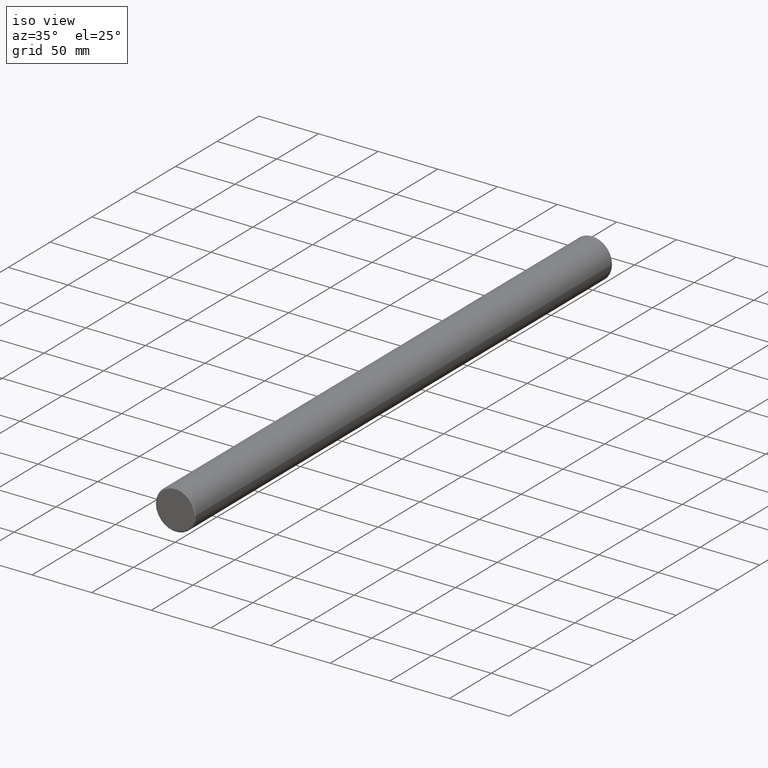
[diagram: clean part render]
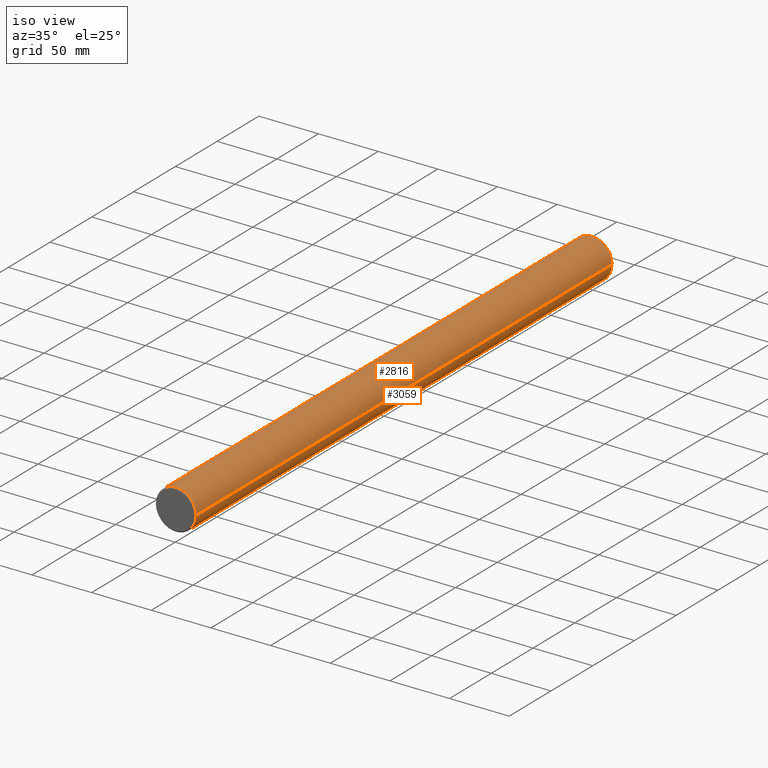
[diagram: same view with one multi-face feature highlighted, each face labeled with its STEP entity id]
A machine part, iso view. The highlighted faces form ONE feature: a constant-radius fillet chain: 2 tangent blend faces with common blend radius 16.85 mm. The faces share edges in the B-rep.
Their STEP definitions:
[1] entity #3059 (Cylinder):
#66 = CARTESIAN_POINT ( 'NONE',  ( -1.365344545369925100, 153.7950279160859300, -16.79652281659360100 ) ) ;
#153 = CARTESIAN_POINT ( 'NONE',  ( 4.211286680376422200, 150.5269586144934200, -16.31525558198159900 ) ) ;
#207 = CARTESIAN_POINT ( 'NONE',  ( -3.425803771637372800, 152.3317920701378200, -16.49825689642531000 ) ) ;
#296 = CARTESIAN_POINT ( 'NONE',  ( 3.574024045214583300, -147.8786323057503600, -16.46678278286257300 ) ) ;
#308 = CARTESIAN_POINT ( 'NONE',  ( -1.040949779275250000E-013, 250.0000000000000000, 0.0000000000000000000 ) ) ;
#324 = DIRECTION ( 'NONE',  ( -3.061616997868382600E-016, 1.000000000000000000, -0.0000000000000000000 ) ) ;
#342 = CARTESIAN_POINT ( 'NONE',  ( 0.1350485459853411600, -145.9977072282343300, -16.85002685795256400 ) ) ;
#403 = CARTESIAN_POINT ( 'NONE',  ( -0.5538761350217521500, -146.0238437858581900, -16.84309281308853900 ) ) ;
#546 = B_SPLINE_CURVE_WITH_KNOTS ( 'NONE', 3,
 ( #7179, #11072, #12326, #2447, #4812, #8611, #6089, #4692, #11116, #12379, #4909, #13633, #8502, #6030, #6146, #14905, #14797, #7296, #7398, #8672, #3702, #13413, #14689, #15922, #8446, #968, #9711, #10963, #1041, #3492, #2294, #15158, #7661, #10029, #6345, #8876, #11275, #7556, #13690, #3861 ),
 .UNSPECIFIED., .F., .F.,
 ( 4, 2, 2, 2, 2, 2, 2, 2, 2, 2, 2, 2, 2, 2, 2, 2, 2, 2, 2, 4 ),
 ( 0.0000000000000000000, 0.03124999999999881300, 0.06249999999999762700, 0.09374999999999644700, 0.1093749999999958500, 0.1249999999999952500, 0.1406249999999946700, 0.1562499999999940600, 0.1874999999999945900, 0.2187499999999951400, 0.2499999999999956700, 0.2656249999999959500, 0.2812499999999962800, 0.3124999999999967800, 0.3437499999999973400, 0.3749999999999978400, 0.4374999999999989500, 0.4531249999999992200, 0.4687499999999995000, 0.5000000000000000000 ),
 .UNSPECIFIED. ) ;
#937 = CARTESIAN_POINT ( 'NONE',  ( 1.870609915636711800, -153.5954066857630900, -16.74781125502987300 ) ) ;
#968 = CARTESIAN_POINT ( 'NONE',  ( 1.096819132585147700, 146.1270178769004500, -16.81645108296531200 ) ) ;
#1006 = CARTESIAN_POINT ( 'NONE',  ( -2.566103788770662600, -153.1762376367486200, -16.65380172221438200 ) ) ;
#1041 = CARTESIAN_POINT ( 'NONE',  ( 2.116314076031886600, 146.5299855641177900, -16.71814975687789200 ) ) ;
#1119 = CARTESIAN_POINT ( 'NONE',  ( -2.777870330786563500, -153.0110786408458200, -16.61979051862296300 ) ) ;
#1165 = CARTESIAN_POINT ( 'NONE',  ( -2.457226800053221800, -153.2530992257274500, -16.67027337817388500 ) ) ;
#1209 = B_SPLINE_CURVE_WITH_KNOTS ( 'NONE', 3,
 ( #7522, #153, #12494, #15078, #6355, #11284, #12695, #9986, #1412, #10086, #15022, #7726, #15214, #10131, #2509, #2658, #11394, #11339, #3925, #5177, #3781, #13756, #6402, #12549, #66, #15170, #10041, #2563, #3830, #7676, #207, #8934, #1466, #10194, #2704, #15275, #6564, #15328, #7839, #7939, #4200, #11550 ),
 .UNSPECIFIED., .F., .F.,
 ( 4, 2, 2, 2, 2, 2, 2, 2, 2, 2, 2, 2, 2, 2, 2, 2, 2, 2, 2, 2, 4 ),
 ( 0.5000000000000000000, 0.5625000000000002200, 0.5781249999999994400, 0.5937499999999987800, 0.6093749999999980000, 0.6249999999999973400, 0.6562499999999978900, 0.6874999999999985600, 0.7187499999999992200, 0.7343749999999993300, 0.7499999999999993300, 0.7812499999999994400, 0.8124999999999995600, 0.8749999999999996700, 0.8906249999999997800, 0.9062499999999997800, 0.9218749999999997800, 0.9374999999999997800, 0.9531249999999998900, 0.9687500000000000000, 1.000000000000000000 ),
 .UNSPECIFIED. ) ;
#1211 = ORIENTED_EDGE ( 'NONE', *, *, #14396, .F. ) ;
#1303 = B_SPLINE_CURVE_WITH_KNOTS ( 'NONE', 3,
 ( #9728, #8412, #7369, #4722, #5951, #8475, #10989, #8529, #8583, #13608, #12352, #11046, #1119, #1006, #1165, #7204, #9846, #15945, #4781, #9788, #4883, #2313, #2423, #3574, #14773, #12240, #3676, #937, #12292, #7269, #13433, #14937, #4939, #14820, #12409, #6059, #4833, #6119, #10929, #14878 ),
 .UNSPECIFIED., .F., .F.,
 ( 4, 2, 2, 2, 2, 2, 2, 2, 2, 2, 2, 2, 2, 2, 2, 2, 2, 2, 2, 4 ),
 ( 0.0000000000000000000, 0.03124999999999811300, 0.06249999999999622500, 0.09374999999999433800, 0.1093749999999947300, 0.1249999999999951200, 0.1406249999999955000, 0.1562499999999958900, 0.1874999999999966700, 0.2187499999999974500, 0.2499999999999982200, 0.2656249999999986100, 0.2812499999999990000, 0.3124999999999991700, 0.3437499999999993300, 0.3749999999999995000, 0.4374999999999998900, 0.4531250000000007200, 0.4687500000000015500, 0.5000000000000000000 ),
 .UNSPECIFIED. ) ;
#1394 = CARTESIAN_POINT ( 'NONE',  ( -4.211731908247751100, 149.9999999999999700, -16.31514064705084300 ) ) ;
#1412 = CARTESIAN_POINT ( 'NONE',  ( 3.339483625711748600, 152.4422006623298700, -16.51599845850256200 ) ) ;
#1443 = CARTESIAN_POINT ( 'NONE',  ( 0.2747739666647548400, -146.0041477002213200, -16.84833002262517700 ) ) ;
#1466 = CARTESIAN_POINT ( 'NONE',  ( -3.649451941424638200, 152.0020691767667200, -16.45017936638694800 ) ) ;
#1547 = CARTESIAN_POINT ( 'NONE',  ( -4.184601887976667100, -149.4762423494580000, -16.32221440564146400 ) ) ;
#1610 = CARTESIAN_POINT ( 'NONE',  ( -3.167954837694907200, -147.3594324998461500, -16.54976003575770700 ) ) ;
#1670 = CARTESIAN_POINT ( 'NONE',  ( -3.649451941516551800, -147.9979308233965300, -16.45017936636616400 ) ) ;
#1958 = EDGE_CURVE ( 'NONE', #15365, #14362, #11062, .T. ) ;
#2294 = CARTESIAN_POINT ( 'NONE',  ( 2.783036976384609200, 146.9846195967248300, -16.61976461280438100 ) ) ;
#2313 = CARTESIAN_POINT ( 'NONE',  ( 0.1382966407275728900, -154.0021776382923500, -16.84999782061062800 ) ) ;
#2423 = CARTESIAN_POINT ( 'NONE',  ( 0.2749665287076343800, -153.9958346358309300, -16.84832619816995700 ) ) ;
#2447 = CARTESIAN_POINT ( 'NONE',  ( -4.075885969039278600, 148.9583794955850900, -16.34970193959467000 ) ) ;
#2509 = CARTESIAN_POINT ( 'NONE',  ( 1.869556208810056400, 153.5959342366983300, -16.74793927524336100 ) ) ;
#2563 = CARTESIAN_POINT ( 'NONE',  ( -3.076975925692964500, 152.7359345153879500, -16.56696710247932800 ) ) ;
#2658 = CARTESIAN_POINT ( 'NONE',  ( 1.357293244403515300, 153.7978269911714900, -16.79721600247600600 ) ) ;
#2682 = CARTESIAN_POINT ( 'NONE',  ( -3.989226575724651400, -148.7096218303249200, -16.37102020510790700 ) ) ;
#2704 = CARTESIAN_POINT ( 'NONE',  ( -3.837042047265513600, 151.6554111766699000, -16.40739376036446400 ) ) ;
#2801 = CARTESIAN_POINT ( 'NONE',  ( -4.211731908247773300, -150.0000000000000300, -16.31514064705081400 ) ) ;
#2833 = CARTESIAN_POINT ( 'NONE',  ( -1.037888162277381500E-013, 249.0000000000000000, 0.0000000000000000000 ) ) ;
#2907 = CARTESIAN_POINT ( 'NONE',  ( -3.778863592313115300, -148.2279180774144200, -16.42093452303335300 ) ) ;
#2936 = CARTESIAN_POINT ( 'NONE',  ( -16.84999999999993700, -249.0000000000000000, 0.0000000000000000000 ) ) ;
#3021 = LINE ( 'NONE', #6243, #13184 ) ;
#3059 = ADVANCED_FACE ( 'NONE', ( #8837, #10375, #8022 ), #11352, .T. ) ;
#3343 = EDGE_LOOP ( 'NONE', ( #10943, #6438 ) ) ;
#3492 = CARTESIAN_POINT ( 'NONE',  ( 2.571482480054696000, 146.8196921999291400, -16.65421251265211900 ) ) ;
#3574 = CARTESIAN_POINT ( 'NONE',  ( 0.5520275914719978700, -153.9698644481437700, -16.84152510344900500 ) ) ;
#3676 = CARTESIAN_POINT ( 'NONE',  ( 1.359696500668330800, -153.7969913615506000, -16.79701130310549900 ) ) ;
#3702 = CARTESIAN_POINT ( 'NONE',  ( -0.2757959061090783400, 145.9978021206479800, -16.85000435249002100 ) ) ;
#3781 = CARTESIAN_POINT ( 'NONE',  ( 0.1350485447445990100, 154.0022927716873700, -16.85002685795232900 ) ) ;
#3810 = DIRECTION ( 'NONE',  ( -3.061616997868382600E-016, 1.000000000000000000, -0.0000000000000000000 ) ) ;
#3830 = CARTESIAN_POINT ( 'NONE',  ( -3.167954837096761200, 152.6405675009245300, -16.54976003587551500 ) ) ;
#3861 = CARTESIAN_POINT ( 'NONE',  ( 4.211730070169816800, 150.0037390704397100, -16.31514112154807700 ) ) ;
#3925 = CARTESIAN_POINT ( 'NONE',  ( 0.5520010408048141600, 153.9698673224363300, -16.84152665690126200 ) ) ;
#3956 = CARTESIAN_POINT ( 'NONE',  ( 2.111181490250010600, -146.5271572076960600, -16.71880123174820900 ) ) ;
#4056 = CARTESIAN_POINT ( 'NONE',  ( 3.421433407392659100, -147.6624604103815000, -16.49916290399389900 ) ) ;
#4112 = CARTESIAN_POINT ( 'NONE',  ( 3.646142116068278300, -147.9924181663867300, -16.45091569020004100 ) ) ;
#4200 = CARTESIAN_POINT ( 'NONE',  ( -4.211731938987282900, 150.2623335797990800, -16.31514063911547700 ) ) ;
#4692 = CARTESIAN_POINT ( 'NONE',  ( -3.423453887774107900, 147.6651160166499300, -16.49874419015994700 ) ) ;
#4710 = DIRECTION ( 'NONE',  ( -1.000000000000000000, 0.0000000000000000000, 0.0000000000000000000 ) ) ;
#4722 = CARTESIAN_POINT ( 'NONE',  ( -4.075885969087107900, -151.0416205042653500, -16.34970193958255500 ) ) ;
#4781 = CARTESIAN_POINT ( 'NONE',  ( -1.097146859643875800, -153.8730125773095900, -16.81645739541874100 ) ) ;
#4812 = CARTESIAN_POINT ( 'NONE',  ( -3.994873033155319900, 148.7055048440656700, -16.36995244387617600 ) ) ;
#4833 = CARTESIAN_POINT ( 'NONE',  ( 4.103373155851189200, -150.9116456906205900, -16.34275425718292100 ) ) ;
#4883 = CARTESIAN_POINT ( 'NONE',  ( -0.2757959077626331900, -154.0021978793521700, -16.85000435249005000 ) ) ;
#4909 = CARTESIAN_POINT ( 'NONE',  ( -3.073013874511523600, 147.2600589081974400, -16.56770255506607700 ) ) ;
#4939 = CARTESIAN_POINT ( 'NONE',  ( 3.677872854701207800, -152.0199067356599000, -16.44516054835494900 ) ) ;
#5139 = LINE ( 'NONE', #6737, #14736 ) ;
#5177 = CARTESIAN_POINT ( 'NONE',  ( 0.2747739662474174000, 153.9958522997005200, -16.84833002263541600 ) ) ;
#5204 = CARTESIAN_POINT ( 'NONE',  ( 1.869556208069199200, -146.4040657630096700, -16.74793927531463600 ) ) ;
#5331 = VERTEX_POINT ( 'NONE', #1394 ) ;
#5366 = CARTESIAN_POINT ( 'NONE',  ( 0.5520010403875104100, -146.0301326776416300, -16.84152665691150800 ) ) ;
#5414 = CARTESIAN_POINT ( 'NONE',  ( 4.099798510364557600, -148.9449125578860300, -16.34507024225661100 ) ) ;
#5625 = CARTESIAN_POINT ( 'NONE',  ( 16.85000000000003700, 249.0000000000000000, 2.063529856563303300E-015 ) ) ;
#5650 = VERTEX_POINT ( 'NONE', #7380 ) ;
#5934 = EDGE_LOOP ( 'NONE', ( #6653, #12182, #9479, #1211 ) ) ;
#5951 = CARTESIAN_POINT ( 'NONE',  ( -3.994873032846013600, -151.2944951567182800, -16.36995244394951500 ) ) ;
#6030 = CARTESIAN_POINT ( 'NONE',  ( -2.566103789316684500, 146.8237623636383400, -16.65380172212669800 ) ) ;
#6059 = CARTESIAN_POINT ( 'NONE',  ( 4.070030691137496600, -151.0377560235055200, -16.35111811427984200 ) ) ;
#6089 = CARTESIAN_POINT ( 'NONE',  ( -3.652583352766198800, 147.9903475624236600, -16.45009180361299500 ) ) ;
#6110 = EDGE_CURVE ( 'NONE', #14767, #8277, #8854, .T. ) ;
#6119 = CARTESIAN_POINT ( 'NONE',  ( 4.185015913652286200, -150.5221823759833900, -16.32211057644792300 ) ) ;
#6146 = CARTESIAN_POINT ( 'NONE',  ( -2.457226799743124500, 146.7469007741143200, -16.67027337821742700 ) ) ;
#6243 = CARTESIAN_POINT ( 'NONE',  ( 16.84999999999996200, 250.0000000000000000, 2.063529856563298500E-015 ) ) ;
#6316 = EDGE_CURVE ( 'NONE', #8277, #12333, #5139, .T. ) ;
#6345 = CARTESIAN_POINT ( 'NONE',  ( 3.989646332288660600, 148.7108447484429500, -16.37091737066614200 ) ) ;
#6355 = CARTESIAN_POINT ( 'NONE',  ( 3.776710975075240600, 151.7762612725120200, -16.42143214178952000 ) ) ;
#6402 = CARTESIAN_POINT ( 'NONE',  ( -0.5538761389246718000, 153.9761562132442500, -16.84309281289706200 ) ) ;
#6438 = ORIENTED_EDGE ( 'NONE', *, *, #1958, .T. ) ;
#6441 = CARTESIAN_POINT ( 'NONE',  ( 3.776710974962731400, -148.2237387272498100, -16.42143214181494700 ) ) ;
#6491 = CARTESIAN_POINT ( 'NONE',  ( -2.125748111591556600, -146.5057960093932400, -16.72312987429579300 ) ) ;
#6564 = CARTESIAN_POINT ( 'NONE',  ( -3.989226575771967800, 151.2903781694883200, -16.37102020509626900 ) ) ;
#6593 = CARTESIAN_POINT ( 'NONE',  ( 1.092724771752553400, -146.1259879554686200, -16.81671217814139800 ) ) ;
#6653 = ORIENTED_EDGE ( 'NONE', *, *, #13961, .F. ) ;
#6661 = CARTESIAN_POINT ( 'NONE',  ( 0.6869442775514998900, -146.0492328163327600, -16.83653606110394600 ) ) ;
#6737 = CARTESIAN_POINT ( 'NONE',  ( -16.85000000000017200, 250.0000000000000000, 0.0000000000000000000 ) ) ;
#7179 = CARTESIAN_POINT ( 'NONE',  ( -4.211731908247751100, 149.9999999999999700, -16.31514064705084300 ) ) ;
#7204 = CARTESIAN_POINT ( 'NONE',  ( -2.112323122245773500, -153.4724136981685700, -16.71868724592426100 ) ) ;
#7269 = CARTESIAN_POINT ( 'NONE',  ( 2.571482479505888800, -153.1803078003424900, -16.65421251272922400 ) ) ;
#7296 = CARTESIAN_POINT ( 'NONE',  ( -1.360069313372492600, 146.2032478127740700, -16.79695426008737500 ) ) ;
#7369 = CARTESIAN_POINT ( 'NONE',  ( -4.183843855526820500, -150.5289064539589100, -16.32240945873989100 ) ) ;
#7380 = CARTESIAN_POINT ( 'NONE',  ( 4.211730070169816800, 150.0037390704397100, -16.31514112154807700 ) ) ;
#7398 = CARTESIAN_POINT ( 'NONE',  ( -1.097146854784843100, 146.1269874220012100, -16.81645739565681900 ) ) ;
#7470 = AXIS2_PLACEMENT_3D ( 'NONE', #8574, #13424, #4710 ) ;
#7522 = CARTESIAN_POINT ( 'NONE',  ( 4.211730070169816800, 150.0037390704397100, -16.31514112154807700 ) ) ;
#7556 = CARTESIAN_POINT ( 'NONE',  ( 4.185015913604830800, 149.4778176235560100, -16.32211057645990200 ) ) ;
#7661 = CARTESIAN_POINT ( 'NONE',  ( 3.677872855261306900, 147.9800932659328500, -16.44516054822202700 ) ) ;
#7676 = CARTESIAN_POINT ( 'NONE',  ( -3.343415596066261900, 152.4374141581849400, -16.51520715119637800 ) ) ;
#7708 = CARTESIAN_POINT ( 'NONE',  ( -2.592800540726981000, -146.8033723839384700, -16.65397137338610300 ) ) ;
#7726 = CARTESIAN_POINT ( 'NONE',  ( 2.781228555622203800, 153.0168973365459500, -16.62006782634033900 ) ) ;
#7752 = CARTESIAN_POINT ( 'NONE',  ( -3.578748845229237800, -147.8857964573605800, -16.46575746222883300 ) ) ;
#7833 = ORIENTED_EDGE ( 'NONE', *, *, #8433, .T. ) ;
#7839 = CARTESIAN_POINT ( 'NONE',  ( -4.103947168864213100, 150.9091058724213500, -16.34260954227687900 ) ) ;
#7866 = CARTESIAN_POINT ( 'NONE',  ( 4.211730070169837200, -149.9962609295603200, -16.31514112154808800 ) ) ;
#7939 = CARTESIAN_POINT ( 'NONE',  ( -4.184601887936661800, 150.5237576508105800, -16.32221440565159300 ) ) ;
#8022 = FACE_BOUND ( 'NONE', #3343, .T. ) ;
#8277 = VERTEX_POINT ( 'NONE', #2936 ) ;
#8412 = CARTESIAN_POINT ( 'NONE',  ( -4.211731877233246400, -150.2646802927066000, -16.31514065505717400 ) ) ;
#8433 = EDGE_CURVE ( 'NONE', #5331, #5650, #546, .T. ) ;
#8446 = CARTESIAN_POINT ( 'NONE',  ( 0.6905363492113140200, 146.0497870224110100, -16.83639047893764100 ) ) ;
#8475 = CARTESIAN_POINT ( 'NONE',  ( -3.783003677585568400, -151.7786938726282500, -16.42020818202690100 ) ) ;
#8502 = CARTESIAN_POINT ( 'NONE',  ( -2.777870330240487500, 146.9889213587672400, -16.61979051871068000 ) ) ;
#8529 = CARTESIAN_POINT ( 'NONE',  ( -3.423453887475332200, -152.3348839837742000, -16.49874419022336600 ) ) ;
#8574 = CARTESIAN_POINT ( 'NONE',  ( 4.867971026610728500E-014, -249.0000000000000000, 0.0000000000000000000 ) ) ;
#8583 = CARTESIAN_POINT ( 'NONE',  ( -3.341774474018943700, -152.4394164747923500, -16.51553835145173500 ) ) ;
#8611 = CARTESIAN_POINT ( 'NONE',  ( -3.783003677276213200, 148.2213061265877600, -16.42020818210030300 ) ) ;
#8672 = CARTESIAN_POINT ( 'NONE',  ( -0.5520148713035930600, 146.0235486260405900, -16.84316627427173100 ) ) ;
#8837 = FACE_OUTER_BOUND ( 'NONE', #5934, .T. ) ;
#8854 = CIRCLE ( 'NONE', #7470, 16.84999999999999100 ) ;
#8876 = CARTESIAN_POINT ( 'NONE',  ( 4.070030691042663100, 148.9622439761590400, -16.35111811430318700 ) ) ;
#8934 = CARTESIAN_POINT ( 'NONE',  ( -3.578748845450835600, 152.1142035422465400, -16.46575746218176700 ) ) ;
#8967 = CARTESIAN_POINT ( 'NONE',  ( -4.070027994340050800, -148.9621460409001100, -16.35111933030297500 ) ) ;
#8984 = DIRECTION ( 'NONE',  ( -1.000000000000000000, 0.0000000000000000000, 0.0000000000000000000 ) ) ;
#9028 = CARTESIAN_POINT ( 'NONE',  ( 2.566736434887528800, -146.8162423903714900, -16.65494719251012500 ) ) ;
#9083 = CARTESIAN_POINT ( 'NONE',  ( -1.365344543990340400, -146.2049720833684000, -16.79652281672675700 ) ) ;
#9479 = ORIENTED_EDGE ( 'NONE', *, *, #6316, .T. ) ;
#9711 = CARTESIAN_POINT ( 'NONE',  ( 1.359696502538503900, 146.2030086393434100, -16.79701130292539800 ) ) ;
#9728 = CARTESIAN_POINT ( 'NONE',  ( -4.211731908247773300, -150.0000000000000300, -16.31514064705081400 ) ) ;
#9788 = CARTESIAN_POINT ( 'NONE',  ( -0.5520148664445547700, -153.9764513746486600, -16.84316627450979800 ) ) ;
#9846 = CARTESIAN_POINT ( 'NONE',  ( -1.867474881311415900, -153.5967352212714400, -16.74813418026960200 ) ) ;
#9908 = CARTESIAN_POINT ( 'NONE',  ( 4.211730070169837200, -149.9962609295603200, -16.31514112154808800 ) ) ;
#9986 = CARTESIAN_POINT ( 'NONE',  ( 3.421433406639959400, 152.3375395906074100, -16.49916290415361400 ) ) ;
#10029 = CARTESIAN_POINT ( 'NONE',  ( 3.943095795727232100, 148.5874156425624900, -16.38223024142276400 ) ) ;
#10041 = CARTESIAN_POINT ( 'NONE',  ( -2.592800539199091100, 153.1966276175153300, -16.65397137366067400 ) ) ;
#10086 = CARTESIAN_POINT ( 'NONE',  ( 3.165549652830002900, 152.6431096413934700, -16.55021605185636000 ) ) ;
#10131 = CARTESIAN_POINT ( 'NONE',  ( 2.111181489626500400, 153.4728427925442400, -16.71880123183559900 ) ) ;
#10167 = CARTESIAN_POINT ( 'NONE',  ( -3.425803771859023100, -147.6682079302548800, -16.49825689637820100 ) ) ;
#10194 = CARTESIAN_POINT ( 'NONE',  ( -3.778863592404977400, 151.7720819224222700, -16.42093452301260800 ) ) ;
#10226 = CARTESIAN_POINT ( 'NONE',  ( -1.097480648235720000, -146.1271089802139300, -16.81642323771644600 ) ) ;
#10274 = CARTESIAN_POINT ( 'NONE',  ( -4.211731938987322000, -149.7376664203180800, -16.31514063911543700 ) ) ;
#10326 = CARTESIAN_POINT ( 'NONE',  ( -4.103947168844268100, -149.0908941274443900, -16.34260954228190200 ) ) ;
#10375 = FACE_BOUND ( 'NONE', #13099, .T. ) ;
#10929 = CARTESIAN_POINT ( 'NONE',  ( 4.211951765066669600, -150.2578707017436600, -16.31508389133129800 ) ) ;
#10943 = ORIENTED_EDGE ( 'NONE', *, *, #14303, .T. ) ;
#10963 = CARTESIAN_POINT ( 'NONE',  ( 1.870609913766532900, 146.4045933133429600, -16.74781125520995000 ) ) ;
#10989 = CARTESIAN_POINT ( 'NONE',  ( -3.652583353363824300, -152.0096524367280600, -16.45009180348607500 ) ) ;
#11046 = CARTESIAN_POINT ( 'NONE',  ( -2.879311326372994800, -152.9237658554048900, -16.60246212198858400 ) ) ;
#11062 = B_SPLINE_CURVE_WITH_KNOTS ( 'NONE', 3,
 ( #7866, #14038, #5414, #12731, #6441, #4112, #296, #4056, #12666, #14163, #11420, #12784, #9028, #3956, #5204, #12834, #6593, #6661, #5366, #1443, #342, #12892, #403, #10226, #9083, #6491, #7708, #15249, #1610, #14104, #10167, #7752, #1670, #2907, #15191, #15359, #2682, #8967, #10326, #1547, #10274, #2801 ),
 .UNSPECIFIED., .F., .F.,
 ( 4, 2, 2, 2, 2, 2, 2, 2, 2, 2, 2, 2, 2, 2, 2, 2, 2, 2, 2, 2, 4 ),
 ( 0.5000000000000000000, 0.5624999999999977800, 0.5781249999999972200, 0.5937499999999966700, 0.6093749999999960000, 0.6249999999999955600, 0.6562499999999965600, 0.6874999999999976700, 0.7187499999999987800, 0.7343749999999993300, 0.7499999999999998900, 0.7812500000000010000, 0.8125000000000020000, 0.8750000000000054400, 0.8906250000000051100, 0.9062500000000048800, 0.9218750000000046600, 0.9375000000000042200, 0.9531250000000040000, 0.9687500000000037700, 1.000000000000000000 ),
 .UNSPECIFIED. ) ;
#11072 = CARTESIAN_POINT ( 'NONE',  ( -4.211731877233243700, 149.7353197072936800, -16.31514065505720300 ) ) ;
#11116 = CARTESIAN_POINT ( 'NONE',  ( -3.341774473162721900, 147.5605835242950300, -16.51553835162029300 ) ) ;
#11275 = CARTESIAN_POINT ( 'NONE',  ( 4.103373155874888500, 149.0883543096097100, -16.34275425717691400 ) ) ;
#11284 = CARTESIAN_POINT ( 'NONE',  ( 3.646142115955763000, 152.0075818338513900, -16.45091569022543600 ) ) ;
#11339 = CARTESIAN_POINT ( 'NONE',  ( 0.6869442775598887400, 153.9507671837824900, -16.83653606110353400 ) ) ;
#11352 = CYLINDRICAL_SURFACE ( 'NONE', #12482, 16.85000000000006500 ) ;
#11394 = CARTESIAN_POINT ( 'NONE',  ( 1.092724771735769500, 153.8740120443009100, -16.81671217814221500 ) ) ;
#11420 = CARTESIAN_POINT ( 'NONE',  ( 3.074238659713453000, -147.2612465024361900, -16.56748029637825300 ) ) ;
#11498 = VERTEX_POINT ( 'NONE', #5625 ) ;
#11550 = CARTESIAN_POINT ( 'NONE',  ( -4.211731908247751100, 149.9999999999999700, -16.31514064705084300 ) ) ;
#11999 = CIRCLE ( 'NONE', #13497, 16.85000000000014400 ) ;
#12182 = ORIENTED_EDGE ( 'NONE', *, *, #6110, .T. ) ;
#12240 = CARTESIAN_POINT ( 'NONE',  ( 1.096819129438560300, -153.8729821237750500, -16.81645108311974500 ) ) ;
#12292 = CARTESIAN_POINT ( 'NONE',  ( 2.116314076580729800, -153.4700144356104100, -16.71814975680080600 ) ) ;
#12326 = CARTESIAN_POINT ( 'NONE',  ( -4.183843855574598300, 149.4710935461905000, -16.32240945872782900 ) ) ;
#12333 = VERTEX_POINT ( 'NONE', #16162 ) ;
#12352 = CARTESIAN_POINT ( 'NONE',  ( -3.073013875325111500, -152.7399410911270600, -16.56770255492006800 ) ) ;
#12379 = CARTESIAN_POINT ( 'NONE',  ( -3.166655778183509600, 147.3580324220048700, -16.55000769956979000 ) ) ;
#12409 = CARTESIAN_POINT ( 'NONE',  ( 3.989646332193866700, -151.2891552518925100, -16.37091737068951900 ) ) ;
#12482 = AXIS2_PLACEMENT_3D ( 'NONE', #308, #15372, #8984 ) ;
#12494 = CARTESIAN_POINT ( 'NONE',  ( 4.099798509752536900, 151.0550874433559400, -16.34507024240175400 ) ) ;
#12549 = CARTESIAN_POINT ( 'NONE',  ( -1.097480644332804700, 153.8728910206834800, -16.81642323790792300 ) ) ;
#12666 = CARTESIAN_POINT ( 'NONE',  ( 3.339483625136997300, -147.5577993371228400, -16.51599845861565500 ) ) ;
#12695 = CARTESIAN_POINT ( 'NONE',  ( 3.574024045967248300, 152.1213676932607400, -16.46678278270283300 ) ) ;
#12731 = CARTESIAN_POINT ( 'NONE',  ( 3.835645768217396300, -148.3417093738046600, -16.40771981740230200 ) ) ;
#12762 = DIRECTION ( 'NONE',  ( -1.000000000000000000, 0.0000000000000000000, 0.0000000000000000000 ) ) ;
#12784 = CARTESIAN_POINT ( 'NONE',  ( 2.781228554967442700, -146.9831026628325200, -16.62006782645785600 ) ) ;
#12800 = EDGE_CURVE ( 'NONE', #5650, #5331, #1209, .T. ) ;
#12834 = CARTESIAN_POINT ( 'NONE',  ( 1.357293245144376900, -146.2021730091205400, -16.79721600240474200 ) ) ;
#12892 = CARTESIAN_POINT ( 'NONE',  ( -0.2800285610566736200, -145.9980360726401000, -16.84994530848596400 ) ) ;
#13099 = EDGE_LOOP ( 'NONE', ( #7833, #14445 ) ) ;
#13184 = VECTOR ( 'NONE', #3810, 1000.000000000000000 ) ;
#13413 = CARTESIAN_POINT ( 'NONE',  ( 0.1382966399008153400, 145.9978223617075300, -16.84999782061065000 ) ) ;
#13418 = CARTESIAN_POINT ( 'NONE',  ( 16.85000000000004100, -249.0000000000000000, 2.063529856563289100E-015 ) ) ;
#13424 = DIRECTION ( 'NONE',  ( -3.061616997868382600E-016, 1.000000000000000000, -0.0000000000000000000 ) ) ;
#13433 = CARTESIAN_POINT ( 'NONE',  ( 2.783036976003793400, -153.0153804037148300, -16.61976461287278500 ) ) ;
#13497 = AXIS2_PLACEMENT_3D ( 'NONE', #2833, #324, #12762 ) ;
#13608 = CARTESIAN_POINT ( 'NONE',  ( -3.166655777327337600, -152.6419675789077800, -16.55000769973830200 ) ) ;
#13633 = CARTESIAN_POINT ( 'NONE',  ( -2.879311327186558700, 147.0762341452705200, -16.60246212184261000 ) ) ;
#13690 = CARTESIAN_POINT ( 'NONE',  ( 4.211951765066516800, 149.7421292984128300, -16.31508389133131600 ) ) ;
#13756 = CARTESIAN_POINT ( 'NONE',  ( -0.2800285585751505200, 154.0019639275165000, -16.84994530848646500 ) ) ;
#13961 = EDGE_CURVE ( 'NONE', #14767, #11498, #3021, .T. ) ;
#14038 = CARTESIAN_POINT ( 'NONE',  ( 4.211286680376168200, -149.4730413851935100, -16.31525558198167800 ) ) ;
#14104 = CARTESIAN_POINT ( 'NONE',  ( -3.343415595468166600, -147.5625858410443500, -16.51520715131414400 ) ) ;
#14163 = CARTESIAN_POINT ( 'NONE',  ( 3.165549653404761400, -147.3568903591537900, -16.55021605174331300 ) ) ;
#14303 = EDGE_CURVE ( 'NONE', #14362, #15365, #1303, .T. ) ;
#14362 = VERTEX_POINT ( 'NONE', #15090 ) ;
#14396 = EDGE_CURVE ( 'NONE', #11498, #12333, #11999, .T. ) ;
#14445 = ORIENTED_EDGE ( 'NONE', *, *, #12800, .T. ) ;
#14689 = CARTESIAN_POINT ( 'NONE',  ( 0.2749665291142601200, 146.0041653642851700, -16.84832619815997700 ) ) ;
#14736 = VECTOR ( 'NONE', #15550, 1000.000000000000000 ) ;
#14767 = VERTEX_POINT ( 'NONE', #13418 ) ;
#14773 = CARTESIAN_POINT ( 'NONE',  ( 0.6905363507845888600, -153.9502129772512300, -16.83639047886043000 ) ) ;
#14797 = CARTESIAN_POINT ( 'NONE',  ( -1.867474881312638900, 146.4032647786512800, -16.74813418026948900 ) ) ;
#14820 = CARTESIAN_POINT ( 'NONE',  ( 3.943095795867299600, -151.4125843570393800, -16.38223024138955400 ) ) ;
#14878 = CARTESIAN_POINT ( 'NONE',  ( 4.211730070169837200, -149.9962609295603200, -16.31514112154808800 ) ) ;
#14905 = CARTESIAN_POINT ( 'NONE',  ( -2.112323122865930300, 146.5275863021476300, -16.71868724583721600 ) ) ;
#14937 = CARTESIAN_POINT ( 'NONE',  ( 3.368925213785587400, -152.4586159329398900, -16.51454889763338200 ) ) ;
#15022 = CARTESIAN_POINT ( 'NONE',  ( 3.074238659386045100, 152.7387534978746000, -16.56748029643699000 ) ) ;
#15078 = CARTESIAN_POINT ( 'NONE',  ( 3.835645768370359800, 151.6582906258848300, -16.40771981736600100 ) ) ;
#15090 = CARTESIAN_POINT ( 'NONE',  ( -4.211731908247773300, -150.0000000000000300, -16.31514064705081400 ) ) ;
#15158 = CARTESIAN_POINT ( 'NONE',  ( 3.368925213023990000, 147.5413840661809400, -16.51454889777014000 ) ) ;
#15170 = CARTESIAN_POINT ( 'NONE',  ( -2.125748108832395300, 153.4942039916982100, -16.72312987456212200 ) ) ;
#15191 = CARTESIAN_POINT ( 'NONE',  ( -3.837042047275630800, -148.3445888234001300, -16.40739376036204400 ) ) ;
#15214 = CARTESIAN_POINT ( 'NONE',  ( 2.566736435511031800, 153.1837576093882100, -16.65494719242271800 ) ) ;
#15249 = CARTESIAN_POINT ( 'NONE',  ( -3.076975925311025200, -147.2640654842486200, -16.56696710254793800 ) ) ;
#15275 = CARTESIAN_POINT ( 'NONE',  ( -3.942944516218106700, 151.4129517475371400, -16.38226633351307600 ) ) ;
#15328 = CARTESIAN_POINT ( 'NONE',  ( -4.070027994292681600, 151.0378539592866200, -16.35111933031465300 ) ) ;
#15359 = CARTESIAN_POINT ( 'NONE',  ( -3.942944516208069800, -148.5870482523928300, -16.38226633351543500 ) ) ;
#15365 = VERTEX_POINT ( 'NONE', #9908 ) ;
#15372 = DIRECTION ( 'NONE',  ( -3.061616997868382600E-016, 1.000000000000000000, -0.0000000000000000000 ) ) ;
#15550 = DIRECTION ( 'NONE',  ( -3.061616997868382600E-016, 1.000000000000000000, -0.0000000000000000000 ) ) ;
#15922 = CARTESIAN_POINT ( 'NONE',  ( 0.5520275910653681400, 146.0301355517399900, -16.84152510345899100 ) ) ;
#15945 = CARTESIAN_POINT ( 'NONE',  ( -1.360069313373771100, -153.7967521873030100, -16.79695426008724400 ) ) ;
#16162 = CARTESIAN_POINT ( 'NONE',  ( -16.85000000000024700, 249.0000000000000000, 0.0000000000000000000 ) ) ;
[2] entity #2816 (Cylinder):
#593 = CIRCLE ( 'NONE', #11040, 16.84999999999999100 ) ;
#1098 = AXIS2_PLACEMENT_3D ( 'NONE', #5185, #10200, #2709 ) ;
#2709 = DIRECTION ( 'NONE',  ( -1.000000000000000000, 0.0000000000000000000, 0.0000000000000000000 ) ) ;
#2816 = ADVANCED_FACE ( 'NONE', ( #10970 ), #4329, .T. ) ;
#2936 = CARTESIAN_POINT ( 'NONE',  ( -16.84999999999993700, -249.0000000000000000, 0.0000000000000000000 ) ) ;
#3021 = LINE ( 'NONE', #6243, #13184 ) ;
#3810 = DIRECTION ( 'NONE',  ( -3.061616997868382600E-016, 1.000000000000000000, -0.0000000000000000000 ) ) ;
#4329 = CYLINDRICAL_SURFACE ( 'NONE', #1098, 16.85000000000006500 ) ;
#5139 = LINE ( 'NONE', #6737, #14736 ) ;
#5185 = CARTESIAN_POINT ( 'NONE',  ( -1.040949779275250000E-013, 250.0000000000000000, 0.0000000000000000000 ) ) ;
#5229 = ORIENTED_EDGE ( 'NONE', *, *, #13961, .T. ) ;
#5480 = EDGE_CURVE ( 'NONE', #12333, #11498, #11459, .T. ) ;
#5625 = CARTESIAN_POINT ( 'NONE',  ( 16.85000000000003700, 249.0000000000000000, 2.063529856563303300E-015 ) ) ;
#5985 = AXIS2_PLACEMENT_3D ( 'NONE', #15633, #6821, #13006 ) ;
#6243 = CARTESIAN_POINT ( 'NONE',  ( 16.84999999999996200, 250.0000000000000000, 2.063529856563298500E-015 ) ) ;
#6316 = EDGE_CURVE ( 'NONE', #8277, #12333, #5139, .T. ) ;
#6737 = CARTESIAN_POINT ( 'NONE',  ( -16.85000000000017200, 250.0000000000000000, 0.0000000000000000000 ) ) ;
#6778 = EDGE_LOOP ( 'NONE', ( #10233, #5229, #10520, #13767 ) ) ;
#6821 = DIRECTION ( 'NONE',  ( -3.061616997868382600E-016, 1.000000000000000000, -0.0000000000000000000 ) ) ;
#8277 = VERTEX_POINT ( 'NONE', #2936 ) ;
#9459 = EDGE_CURVE ( 'NONE', #8277, #14767, #593, .T. ) ;
#9749 = CARTESIAN_POINT ( 'NONE',  ( 4.867971026610728500E-014, -249.0000000000000000, 0.0000000000000000000 ) ) ;
#10200 = DIRECTION ( 'NONE',  ( -3.061616997868382600E-016, 1.000000000000000000, -0.0000000000000000000 ) ) ;
#10233 = ORIENTED_EDGE ( 'NONE', *, *, #9459, .T. ) ;
#10520 = ORIENTED_EDGE ( 'NONE', *, *, #5480, .F. ) ;
#10970 = FACE_OUTER_BOUND ( 'NONE', #6778, .T. ) ;
#11040 = AXIS2_PLACEMENT_3D ( 'NONE', #9749, #14792, #16133 ) ;
#11459 = CIRCLE ( 'NONE', #5985, 16.85000000000014400 ) ;
#11498 = VERTEX_POINT ( 'NONE', #5625 ) ;
#12333 = VERTEX_POINT ( 'NONE', #16162 ) ;
#13006 = DIRECTION ( 'NONE',  ( -1.000000000000000000, 0.0000000000000000000, 0.0000000000000000000 ) ) ;
#13184 = VECTOR ( 'NONE', #3810, 1000.000000000000000 ) ;
#13418 = CARTESIAN_POINT ( 'NONE',  ( 16.85000000000004100, -249.0000000000000000, 2.063529856563289100E-015 ) ) ;
#13767 = ORIENTED_EDGE ( 'NONE', *, *, #6316, .F. ) ;
#13961 = EDGE_CURVE ( 'NONE', #14767, #11498, #3021, .T. ) ;
#14736 = VECTOR ( 'NONE', #15550, 1000.000000000000000 ) ;
#14767 = VERTEX_POINT ( 'NONE', #13418 ) ;
#14792 = DIRECTION ( 'NONE',  ( -3.061616997868382600E-016, 1.000000000000000000, -0.0000000000000000000 ) ) ;
#15550 = DIRECTION ( 'NONE',  ( -3.061616997868382600E-016, 1.000000000000000000, -0.0000000000000000000 ) ) ;
#15633 = CARTESIAN_POINT ( 'NONE',  ( -1.037888162277381500E-013, 249.0000000000000000, 0.0000000000000000000 ) ) ;
#16133 = DIRECTION ( 'NONE',  ( -1.000000000000000000, 0.0000000000000000000, 0.0000000000000000000 ) ) ;
#16162 = CARTESIAN_POINT ( 'NONE',  ( -16.85000000000024700, 249.0000000000000000, 0.0000000000000000000 ) ) ;